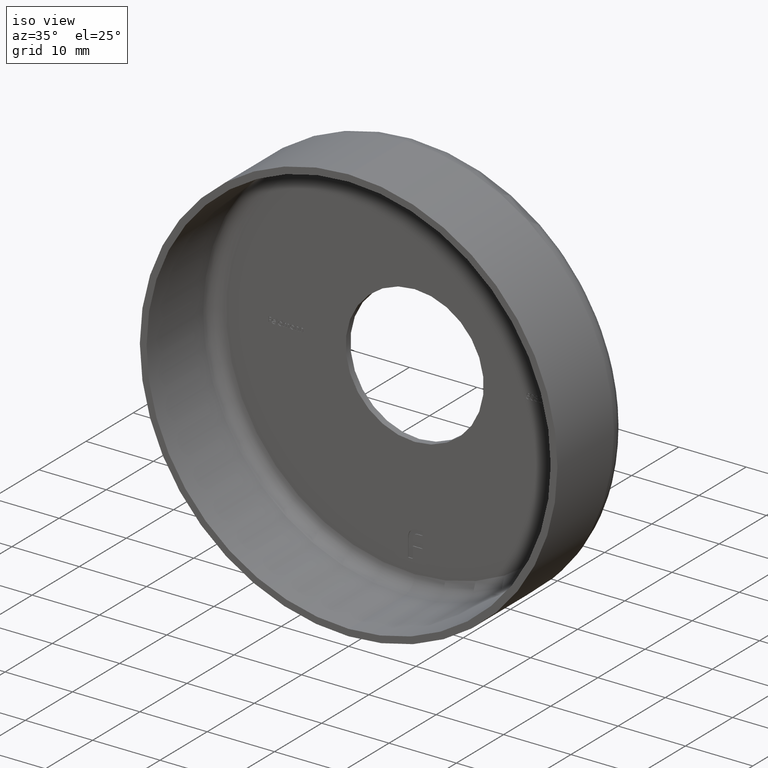
[diagram: clean part render]
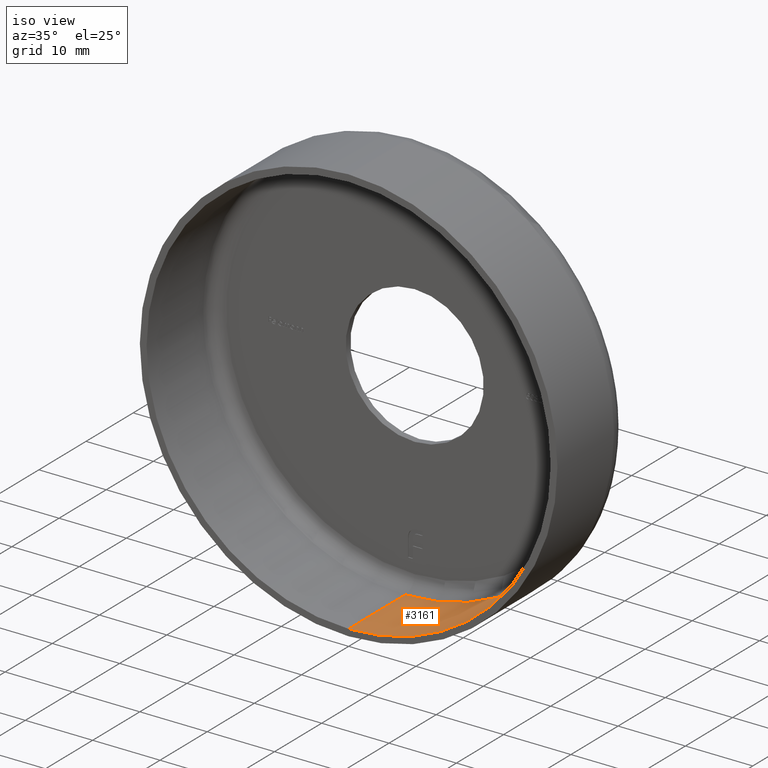
[diagram: same view with one face highlighted and labeled with its STEP entity id]
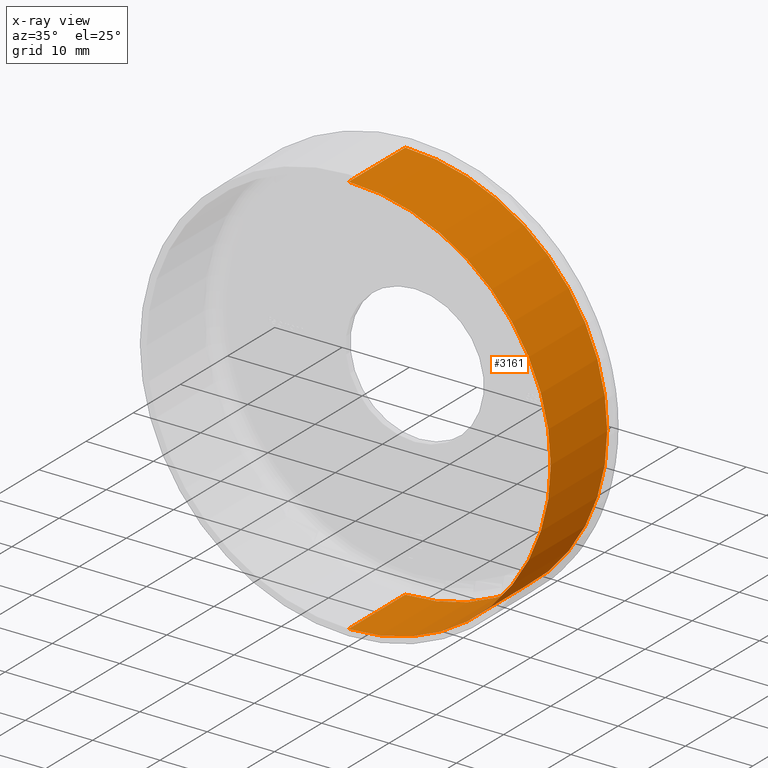
[diagram: x-ray of the same camera — body ghosted, the highlighted face saturated]
A machine part, iso view. The second image highlights one B-rep face of the part: STEP entity #3161.
The next image is the same camera in x-ray: the body ghosted, the highlighted face saturated — about 0% of this face is hidden behind the body in this view.
In plain terms, the highlighted cylindrical surface (partial cylindrical patch) has radius 30 mm, axis along (-0, -1, -0).
Its self-contained STEP definition (entity closure, byte-faithful):
#313 = ORIENTED_EDGE ( 'NONE', *, *, #12704, .T. ) ;
#609 = CARTESIAN_POINT ( 'NONE',  ( 0.000000000000000000, 12.00000000000000000, 0.000000000000000000 ) ) ;
#648 = FACE_OUTER_BOUND ( 'NONE', #9833, .T. ) ;
#1785 = DIRECTION ( 'NONE',  ( 0.000000000000000000, 0.000000000000000000, -1.000000000000000000 ) ) ;
#1850 = CARTESIAN_POINT ( 'NONE',  ( 3.673940397442059178E-15, 12.00000000000000000, 30.00000000000000000 ) ) ;
#1922 = DIRECTION ( 'NONE',  ( 0.000000000000000000, 0.000000000000000000, -1.000000000000000000 ) ) ;
#2383 = CARTESIAN_POINT ( 'NONE',  ( 0.000000000000000000, 0.000000000000000000, -30.00000000000000000 ) ) ;
#2542 = CARTESIAN_POINT ( 'NONE',  ( 0.000000000000000000, -1.224646799147353207E-16, -30.00000000000000000 ) ) ;
#2878 = DIRECTION ( 'NONE',  ( -0.000000000000000000, -1.000000000000000000, -0.000000000000000000 ) ) ;
#3161 = ADVANCED_FACE ( 'NONE', ( #648 ), #16052, .F. ) ;
#3294 = ORIENTED_EDGE ( 'NONE', *, *, #14781, .F. ) ;
#3755 = CARTESIAN_POINT ( 'NONE',  ( 0.000000000000000000, 0.000000000000000000, 0.000000000000000000 ) ) ;
#3858 = CARTESIAN_POINT ( 'NONE',  ( 3.673940397442059178E-15, -1.224646799147353207E-16, 30.00000000000000000 ) ) ;
#4854 = EDGE_CURVE ( 'NONE', #11266, #14642, #5170, .T. ) ;
#4922 = CARTESIAN_POINT ( 'NONE',  ( 0.000000000000000000, 12.00000000000000000, -30.00000000000000000 ) ) ;
#5170 = LINE ( 'NONE', #9106, #14819 ) ;
#5391 = CARTESIAN_POINT ( 'NONE',  ( 0.000000000000000000, -1.224646799147353207E-16, 0.000000000000000000 ) ) ;
#6152 = ORIENTED_EDGE ( 'NONE', *, *, #10090, .T. ) ;
#6802 = DIRECTION ( 'NONE',  ( -0.000000000000000000, -1.000000000000000000, -0.000000000000000000 ) ) ;
#7468 = VERTEX_POINT ( 'NONE', #2542 ) ;
#7664 = CIRCLE ( 'NONE', #12258, 30.00000000000000000 ) ;
#7812 = DIRECTION ( 'NONE',  ( -0.000000000000000000, -1.000000000000000000, -0.000000000000000000 ) ) ;
#8610 = VECTOR ( 'NONE', #16026, 1000.000000000000000 ) ;
#8649 = ORIENTED_EDGE ( 'NONE', *, *, #4854, .F. ) ;
#8824 = AXIS2_PLACEMENT_3D ( 'NONE', #609, #7812, #1922 ) ;
#9106 = CARTESIAN_POINT ( 'NONE',  ( 3.673940397442059178E-15, 0.000000000000000000, 30.00000000000000000 ) ) ;
#9833 = EDGE_LOOP ( 'NONE', ( #8649, #3294, #313, #6152 ) ) ;
#10090 = EDGE_CURVE ( 'NONE', #7468, #14642, #7664, .T. ) ;
#10098 = DIRECTION ( 'NONE',  ( 0.000000000000000000, 0.000000000000000000, -1.000000000000000000 ) ) ;
#10712 = VERTEX_POINT ( 'NONE', #4922 ) ;
#10783 = LINE ( 'NONE', #2383, #8610 ) ;
#11266 = VERTEX_POINT ( 'NONE', #1850 ) ;
#12258 = AXIS2_PLACEMENT_3D ( 'NONE', #5391, #6802, #1785 ) ;
#12704 = EDGE_CURVE ( 'NONE', #10712, #7468, #10783, .T. ) ;
#14259 = AXIS2_PLACEMENT_3D ( 'NONE', #3755, #15106, #10098 ) ;
#14506 = CIRCLE ( 'NONE', #8824, 30.00000000000000000 ) ;
#14642 = VERTEX_POINT ( 'NONE', #3858 ) ;
#14781 = EDGE_CURVE ( 'NONE', #10712, #11266, #14506, .T. ) ;
#14819 = VECTOR ( 'NONE', #2878, 1000.000000000000000 ) ;
#15106 = DIRECTION ( 'NONE',  ( -0.000000000000000000, -1.000000000000000000, -0.000000000000000000 ) ) ;
#16026 = DIRECTION ( 'NONE',  ( -0.000000000000000000, -1.000000000000000000, -0.000000000000000000 ) ) ;
#16052 = CYLINDRICAL_SURFACE ( 'NONE', #14259, 30.00000000000000000 ) ;